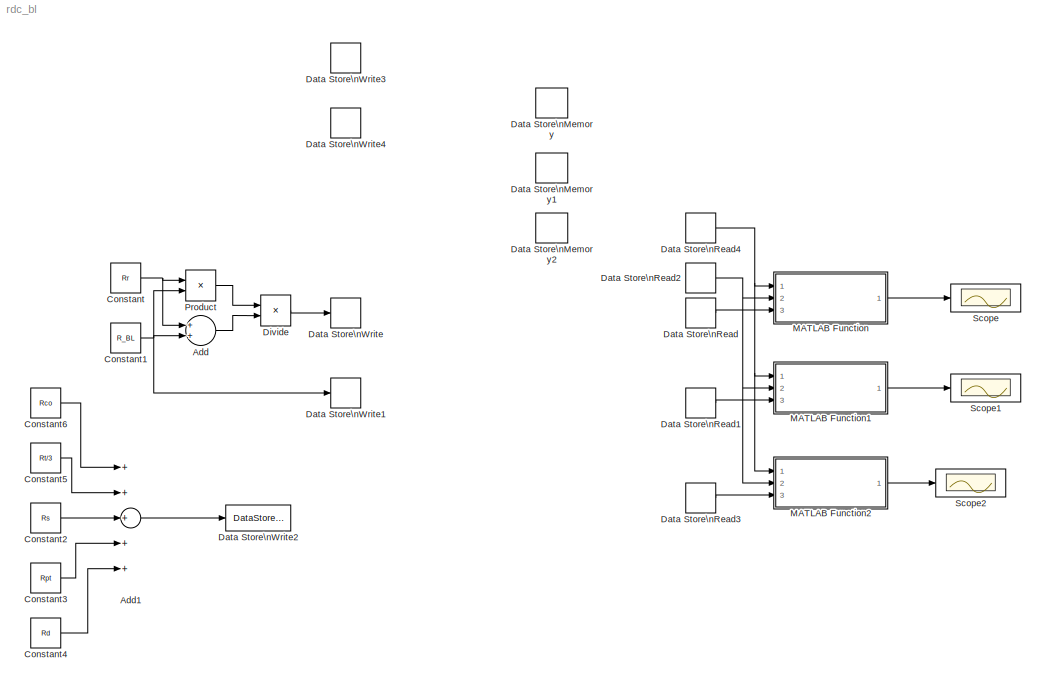
MODEL rdc_bl
KIND model
BLOCK [Sum] Add
  InputSameDT = off
  OutDataTypeStr = Inherit: Inherit via internal rule
  Ports = [2, 1]
  SID = 30
  SaturateOnIntegerOverflow = off
BLOCK [Sum] Add1
  InputSameDT = off
  Inputs = +++++
  OutDataTypeStr = Inherit: Inherit via internal rule
  Ports = [5, 1]
  SID = 37
  SaturateOnIntegerOverflow = off
BLOCK [Constant] Constant
  SID = 27
  Value = Rr
BLOCK [Constant] Constant1
  SID = 28
  Value = R_BL
BLOCK [Constant] Constant2
  SID = 32
  Value = Rs
BLOCK [Constant] Constant3
  SID = 33
  Value = Rpt
BLOCK [Constant] Constant4
  SID = 34
  Value = Rd
BLOCK [Constant] Constant5
  SID = 35
  Value = Rt/3
BLOCK [Constant] Constant6
  SID = 36
  Value = Rco
BLOCK [DataStoreMemory] Data Store\nMemory
  DataStoreName = Rrec
  ReadBeforeWriteMsg = warning
  SID = 21
  WriteAfterReadMsg = warning
  WriteAfterWriteMsg = warning
BLOCK [DataStoreMemory] Data Store\nMemory1
  DataStoreName = R_BL
  ReadBeforeWriteMsg = warning
  SID = 22
  WriteAfterReadMsg = warning
  WriteAfterWriteMsg = warning
BLOCK [DataStoreMemory] Data Store\nMemory2
  DataStoreName = R_series
  ReadBeforeWriteMsg = warning
  SID = 23
  WriteAfterReadMsg = warning
  WriteAfterWriteMsg = warning
BLOCK [DataStoreRead] Data Store\nRead
  DataStoreName = Rrec
  Ports = [0, 1]
  SID = 11
BLOCK [DataStoreRead] Data Store\nRead1
  DataStoreName = R_BL
  Ports = [0, 1]
  SID = 12
BLOCK [DataStoreRead] Data Store\nRead2
  DataStoreName = j
  Ports = [0, 1]
  SID = 19
BLOCK [DataStoreRead] Data Store\nRead3
  DataStoreName = R_series
  Ports = [0, 1]
  SID = 14
BLOCK [DataStoreRead] Data Store\nRead4
  DataStoreName = jsc
  Ports = [0, 1]
  SID = 20
BLOCK [DataStoreWrite] Data Store\nWrite
  DataStoreName = Rrec
  Ports = [1]
  SID = 10
BLOCK [DataStoreWrite] Data Store\nWrite1
  DataStoreName = R_BL
  Ports = [1]
  SID = 15
BLOCK [DataStoreWrite] Data Store\nWrite2
  DataStoreName = R_series
  Ports = [1]
  SID = 16
BLOCK [DataStoreWrite] Data Store\nWrite3
  DataStoreName = jsc
  Ports = [1]
  SID = 17
BLOCK [DataStoreWrite] Data Store\nWrite4
  DataStoreName = j
  Ports = [1]
  SID = 18
BLOCK [Product] Divide
  InputSameDT = off
  Inputs = */
  OutDataTypeStr = Inherit: Inherit via internal rule
  Ports = [2, 1]
  RndMeth = Floor
  SID = 31
  SaturateOnIntegerOverflow = off
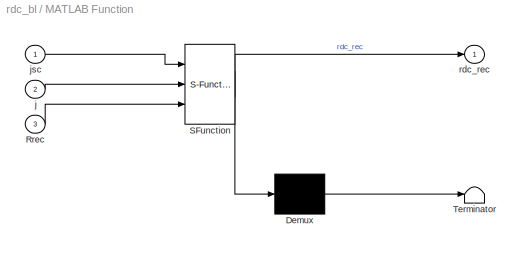
BLOCK [SubSystem] MATLAB Function
  ErrorFcn = Stateflow.Translate.translate
  FunctionWithSeparateData = off
  MaskHideContents = off
  MinAlgLoopOccurrences = off
  Opaque = off
  PermitHierarchicalResolution = ExplicitOnly
  Ports = [3, 1]
  PropExecContextOutsideSubsystem = off
  RTWSystemCode = Auto
  RequestExecContextInheritance = off
  SFBlockType = MATLAB Function
  SID = 3
  TreatAsAtomicUnit = on
BLOCK [Demux] MATLAB Function/ Demux 
  Outputs = 1
  Ports = [1, 1]
  SID = 3::19
BLOCK [S-Function] MATLAB Function/ SFunction 
  EnableBusSupport = on
  FunctionName = sf_sfun
  PortCounts = [3 2]
  Ports = [3, 2]
  SID = 3::18
  Tag = Stateflow S-Function rdc_bl 2
BLOCK [Terminator] MATLAB Function/ Terminator 
  SID = 3::20
BLOCK [Inport] MATLAB Function/Rrec
  IconDisplay = Port number
  Port = 3
  SID = 3::22
BLOCK [Inport] MATLAB Function/j
  IconDisplay = Port number
  Port = 2
  SID = 3::21
BLOCK [Inport] MATLAB Function/jsc
  IconDisplay = Port number
  SID = 3::1
BLOCK [Outport] MATLAB Function/rdc_rec
  IconDisplay = Port number
  SID = 3::5
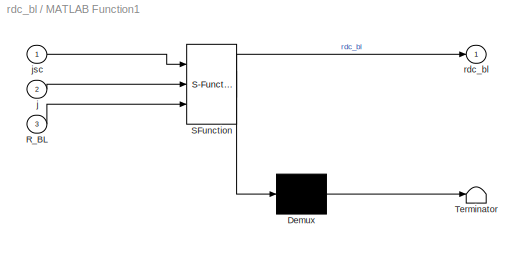
BLOCK [SubSystem] MATLAB Function1
  ErrorFcn = Stateflow.Translate.translate
  FunctionWithSeparateData = off
  MaskHideContents = off
  MinAlgLoopOccurrences = off
  Opaque = off
  PermitHierarchicalResolution = ExplicitOnly
  Ports = [3, 1]
  PropExecContextOutsideSubsystem = off
  RTWSystemCode = Auto
  RequestExecContextInheritance = off
  SFBlockType = MATLAB Function
  SID = 4
  TreatAsAtomicUnit = on
BLOCK [Demux] MATLAB Function1/ Demux 
  Outputs = 1
  Ports = [1, 1]
  SID = 4::19
BLOCK [S-Function] MATLAB Function1/ SFunction 
  EnableBusSupport = on
  FunctionName = sf_sfun
  PortCounts = [3 2]
  Ports = [3, 2]
  SID = 4::18
  Tag = Stateflow S-Function rdc_bl 1
BLOCK [Terminator] MATLAB Function1/ Terminator 
  SID = 4::20
BLOCK [Inport] MATLAB Function1/R_BL
  IconDisplay = Port number
  Port = 3
  SID = 4::22
BLOCK [Inport] MATLAB Function1/j
  IconDisplay = Port number
  Port = 2
  SID = 4::21
BLOCK [Inport] MATLAB Function1/jsc
  IconDisplay = Port number
  SID = 4::1
BLOCK [Outport] MATLAB Function1/rdc_bl
  IconDisplay = Port number
  SID = 4::5
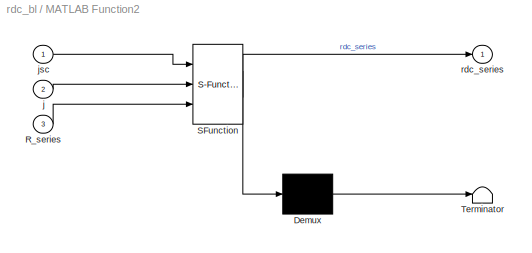
BLOCK [SubSystem] MATLAB Function2
  ErrorFcn = Stateflow.Translate.translate
  FunctionWithSeparateData = off
  MaskHideContents = off
  MinAlgLoopOccurrences = off
  Opaque = off
  PermitHierarchicalResolution = ExplicitOnly
  Ports = [3, 1]
  PropExecContextOutsideSubsystem = off
  RTWSystemCode = Auto
  RequestExecContextInheritance = off
  SFBlockType = MATLAB Function
  SID = 5
  TreatAsAtomicUnit = on
BLOCK [Demux] MATLAB Function2/ Demux 
  Outputs = 1
  Ports = [1, 1]
  SID = 5::19
BLOCK [S-Function] MATLAB Function2/ SFunction 
  EnableBusSupport = on
  FunctionName = sf_sfun
  PortCounts = [3 2]
  Ports = [3, 2]
  SID = 5::18
  Tag = Stateflow S-Function rdc_bl 3
BLOCK [Terminator] MATLAB Function2/ Terminator 
  SID = 5::20
BLOCK [Inport] MATLAB Function2/R_series
  IconDisplay = Port number
  Port = 3
  SID = 5::22
BLOCK [Inport] MATLAB Function2/j
  IconDisplay = Port number
  Port = 2
  SID = 5::21
BLOCK [Inport] MATLAB Function2/jsc
  IconDisplay = Port number
  SID = 5::1
BLOCK [Outport] MATLAB Function2/rdc_series
  IconDisplay = Port number
  SID = 5::5
BLOCK [Product] Product
  InputSameDT = off
  OutDataTypeStr = Inherit: Inherit via internal rule
  Ports = [2, 1]
  RndMeth = Floor
  SID = 29
  SaturateOnIntegerOverflow = off
BLOCK [Scope] Scope
  DataFormat = StructureWithTime
  Floating = off
  LimitDataPoints = off
  NumInputPorts = 1
  Ports = [1]
  SID = 24
  SampleTime = 0
  ShowLegends = off
BLOCK [Scope] Scope1
  DataFormat = StructureWithTime
  Floating = off
  LimitDataPoints = off
  NumInputPorts = 1
  Ports = [1]
  SID = 25
  SampleTime = 0
  SaveName = ScopeData1
  ShowLegends = off
BLOCK [Scope] Scope2
  DataFormat = StructureWithTime
  Floating = off
  LimitDataPoints = off
  NumInputPorts = 1
  Ports = [1]
  SID = 26
  SampleTime = 0
  SaveName = ScopeData2
  ShowLegends = off
LINE Add1:1 -> Data Store\nWrite2:1
LINE Add:1 -> Divide:2
NET Constant1:1 -> Add:2, Data Store\nWrite1:1, Product:2
LINE Constant2:1 -> Add1:3
LINE Constant3:1 -> Add1:4
LINE Constant4:1 -> Add1:5
LINE Constant5:1 -> Add1:2
LINE Constant6:1 -> Add1:1
NET Constant:1 -> Add:1, Product:1
LINE Data Store\nRead1:1 -> MATLAB Function1:3
NET Data Store\nRead2:1 -> MATLAB Function1:2, MATLAB Function2:2, MATLAB Function:2
LINE Data Store\nRead3:1 -> MATLAB Function2:3
NET Data Store\nRead4:1 -> MATLAB Function1:1, MATLAB Function2:1, MATLAB Function:1
LINE Data Store\nRead:1 -> MATLAB Function:3
LINE Divide:1 -> Data Store\nWrite:1
LINE MATLAB Function/ Demux :1 -> MATLAB Function/ Terminator :1
LINE MATLAB Function/ SFunction :1 -> MATLAB Function/ Demux :1
LINE MATLAB Function/ SFunction :2 -> MATLAB Function/rdc_rec:1
LINE MATLAB Function/Rrec:1 -> MATLAB Function/ SFunction :3
LINE MATLAB Function/j:1 -> MATLAB Function/ SFunction :2
LINE MATLAB Function/jsc:1 -> MATLAB Function/ SFunction :1
LINE MATLAB Function1/ Demux :1 -> MATLAB Function1/ Terminator :1
LINE MATLAB Function1/ SFunction :1 -> MATLAB Function1/ Demux :1
LINE MATLAB Function1/ SFunction :2 -> MATLAB Function1/rdc_bl:1
LINE MATLAB Function1/R_BL:1 -> MATLAB Function1/ SFunction :3
LINE MATLAB Function1/j:1 -> MATLAB Function1/ SFunction :2
LINE MATLAB Function1/jsc:1 -> MATLAB Function1/ SFunction :1
LINE MATLAB Function1:1 -> Scope1:1
LINE MATLAB Function2/ Demux :1 -> MATLAB Function2/ Terminator :1
LINE MATLAB Function2/ SFunction :1 -> MATLAB Function2/ Demux :1
LINE MATLAB Function2/ SFunction :2 -> MATLAB Function2/rdc_series:1
LINE MATLAB Function2/R_series:1 -> MATLAB Function2/ SFunction :3
LINE MATLAB Function2/j:1 -> MATLAB Function2/ SFunction :2
LINE MATLAB Function2/jsc:1 -> MATLAB Function2/ SFunction :1
LINE MATLAB Function2:1 -> Scope2:1
LINE MATLAB Function:1 -> Scope:1
LINE Product:1 -> Divide:1
note: NET lines group one-source signal fan-out (src -> all destinations, sorted); 1:1 wires keep LINE
CHART MATLAB Function1 states=1 transitions=1
  STATE_LABEL 'eML_blk_kernel()'
CHART MATLAB Function states=1 transitions=1
  STATE_LABEL 'eML_blk_kernel()'
CHART MATLAB Function2 states=1 transitions=1
  STATE_LABEL 'eML_blk_kernel()'
